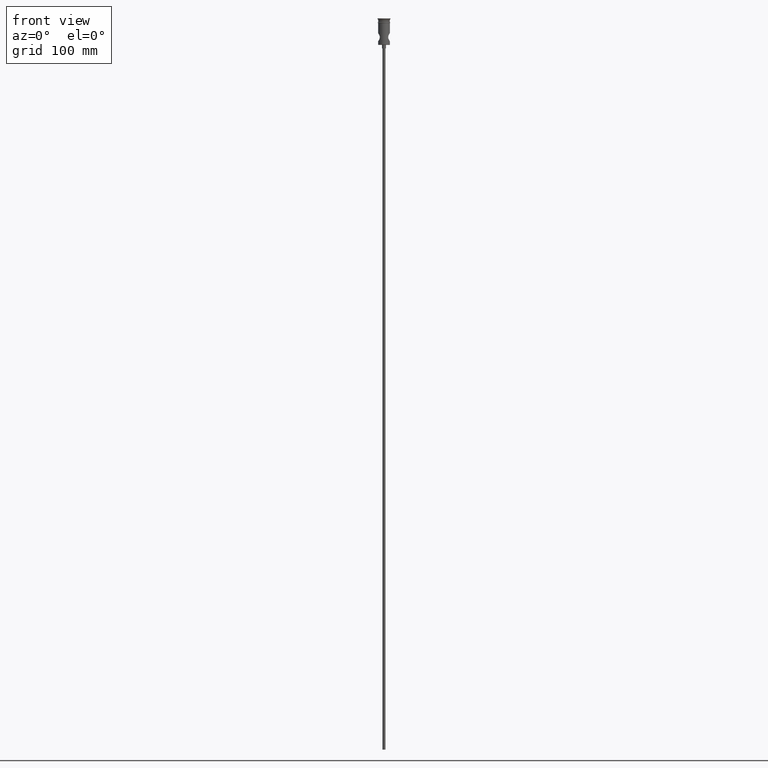
[diagram: clean part render]
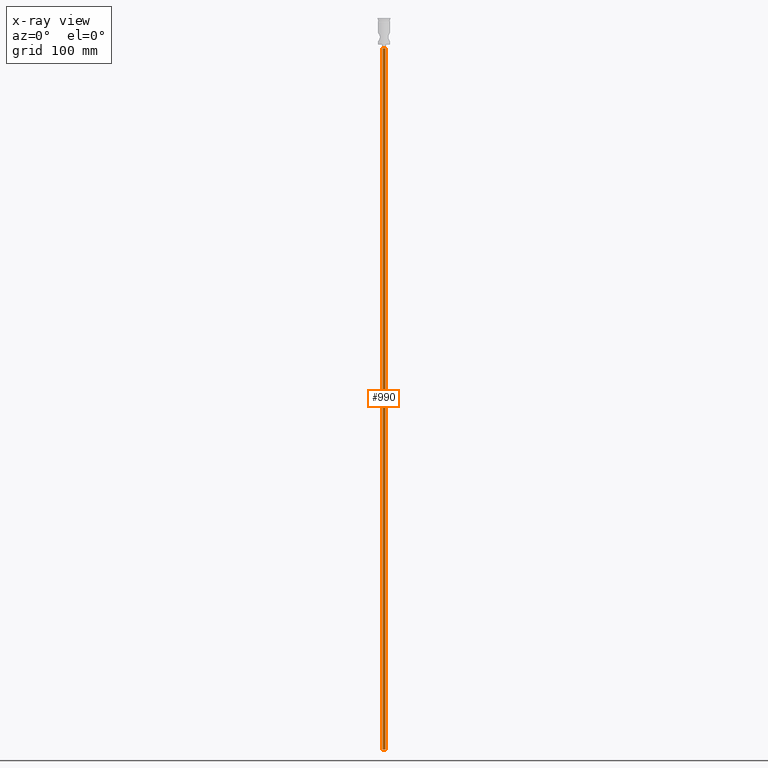
[diagram: x-ray — body ghosted, one internal face saturated and labeled with its STEP entity id]
A machine part, front view, then the same camera in x-ray: the body is ghosted and one INTERNAL B-rep face — a face not visible from any outside direction — is saturated and labeled: STEP entity #990.
In plain terms, the highlighted cylindrical surface (edge-blend (fillet) strip) has radius 1.25 mm, axis along (-0, -0, 1).
Its self-contained STEP definition (entity closure, byte-faithful):
#57 = AXIS2_PLACEMENT_3D ( 'NONE', #826, #1168, #642 ) ;
#61 = EDGE_CURVE ( 'NONE', #1355, #678, #1231, .T. ) ;
#101 = VERTEX_POINT ( 'NONE', #1385 ) ;
#122 = ORIENTED_EDGE ( 'NONE', *, *, #950, .T. ) ;
#163 = CYLINDRICAL_SURFACE ( 'NONE', #57, 1.250000000000000000 ) ;
#164 = ORIENTED_EDGE ( 'NONE', *, *, #61, .F. ) ;
#191 = LINE ( 'NONE', #640, #822 ) ;
#281 = ORIENTED_EDGE ( 'NONE', *, *, #854, .F. ) ;
#369 = ORIENTED_EDGE ( 'NONE', *, *, #638, .T. ) ;
#371 = DIRECTION ( 'NONE',  ( -0.000000000000000000, -0.000000000000000000, 1.000000000000000000 ) ) ;
#378 = CIRCLE ( 'NONE', #1401, 1.250000000000000000 ) ;
#424 = DIRECTION ( 'NONE',  ( -0.000000000000000000, -0.000000000000000000, 1.000000000000000000 ) ) ;
#462 = DIRECTION ( 'NONE',  ( 0.000000000000000000, 0.000000000000000000, -1.000000000000000000 ) ) ;
#470 = CARTESIAN_POINT ( 'NONE',  ( 0.000000000000000000, 0.000000000000000000, -622.4999999999998863 ) ) ;
#514 = FACE_OUTER_BOUND ( 'NONE', #1308, .T. ) ;
#592 = AXIS2_PLACEMENT_3D ( 'NONE', #470, #462, #1338 ) ;
#638 = EDGE_CURVE ( 'NONE', #1355, #1274, #191, .T. ) ;
#640 = CARTESIAN_POINT ( 'NONE',  ( -1.250000000000000000, 1.530808498934191571E-16, -622.4999999999998863 ) ) ;
#642 = DIRECTION ( 'NONE',  ( 1.000000000000000000, 0.000000000000000000, 0.000000000000000000 ) ) ;
#678 = VERTEX_POINT ( 'NONE', #1004 ) ;
#795 = LINE ( 'NONE', #898, #1213 ) ;
#822 = VECTOR ( 'NONE', #424, 1000.000000000000000 ) ;
#826 = CARTESIAN_POINT ( 'NONE',  ( 0.000000000000000000, 0.000000000000000000, -622.4999999999998863 ) ) ;
#854 = EDGE_CURVE ( 'NONE', #678, #101, #795, .T. ) ;
#887 = CARTESIAN_POINT ( 'NONE',  ( -1.250000000000000000, 1.530808498934191571E-16, -622.4999999999998863 ) ) ;
#898 = CARTESIAN_POINT ( 'NONE',  ( 1.250000000000000000, 0.000000000000000000, -622.4999999999998863 ) ) ;
#904 = CARTESIAN_POINT ( 'NONE',  ( -1.250000000000000000, 1.530808498934191571E-16, -25.50000000000000000 ) ) ;
#950 = EDGE_CURVE ( 'NONE', #1274, #101, #378, .T. ) ;
#990 = ADVANCED_FACE ( 'NONE', ( #514 ), #163, .T. ) ;
#1004 = CARTESIAN_POINT ( 'NONE',  ( 1.250000000000000000, 0.000000000000000000, -622.4999999999998863 ) ) ;
#1045 = CARTESIAN_POINT ( 'NONE',  ( 0.000000000000000000, 0.000000000000000000, -25.50000000000000000 ) ) ;
#1168 = DIRECTION ( 'NONE',  ( -0.000000000000000000, -0.000000000000000000, 1.000000000000000000 ) ) ;
#1213 = VECTOR ( 'NONE', #371, 1000.000000000000000 ) ;
#1231 = CIRCLE ( 'NONE', #592, 1.250000000000000000 ) ;
#1274 = VERTEX_POINT ( 'NONE', #904 ) ;
#1308 = EDGE_LOOP ( 'NONE', ( #164, #369, #122, #281 ) ) ;
#1338 = DIRECTION ( 'NONE',  ( -1.000000000000000000, 0.000000000000000000, 0.000000000000000000 ) ) ;
#1355 = VERTEX_POINT ( 'NONE', #887 ) ;
#1385 = CARTESIAN_POINT ( 'NONE',  ( 1.250000000000000000, 0.000000000000000000, -25.50000000000000000 ) ) ;
#1395 = DIRECTION ( 'NONE',  ( -1.000000000000000000, 0.000000000000000000, 0.000000000000000000 ) ) ;
#1401 = AXIS2_PLACEMENT_3D ( 'NONE', #1045, #1405, #1395 ) ;
#1405 = DIRECTION ( 'NONE',  ( 0.000000000000000000, 0.000000000000000000, -1.000000000000000000 ) ) ;